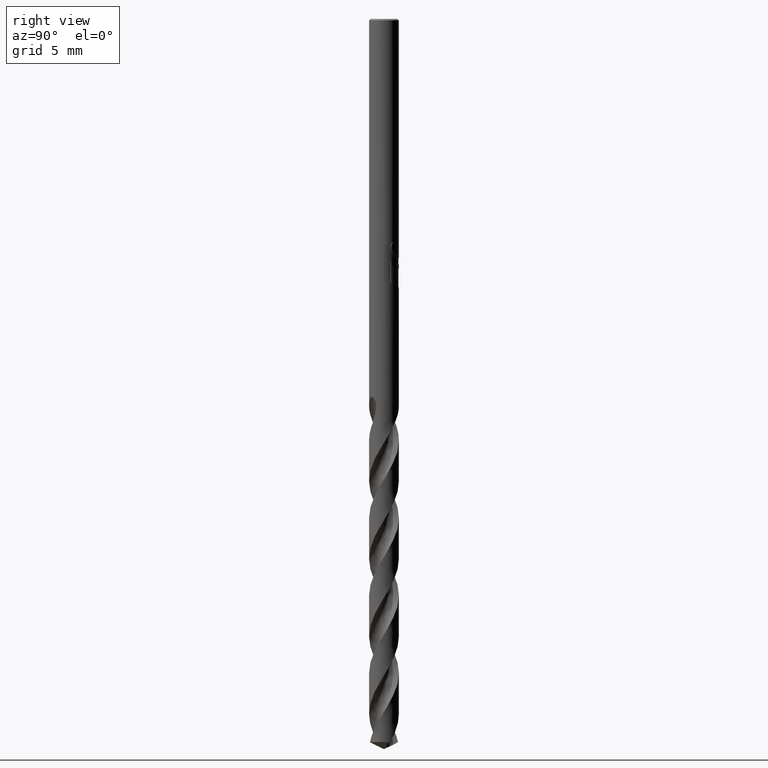
[diagram: clean part render]
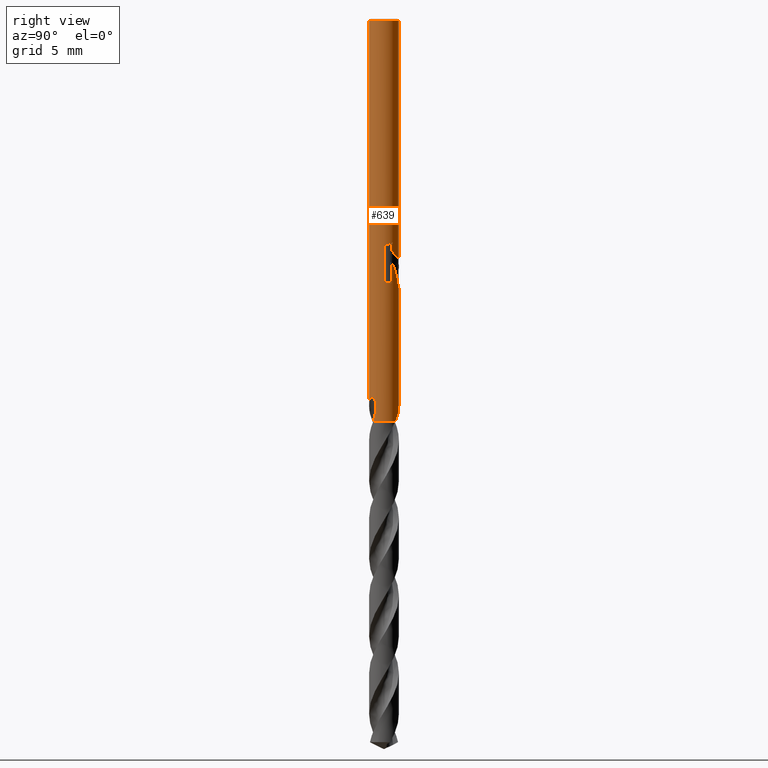
[diagram: same view with one face highlighted and labeled with its STEP entity id]
A machine part, right view. The second image highlights one B-rep face of the part: STEP entity #639.
In plain terms, the highlighted cylindrical surface (edge-blend (fillet) strip) has radius 1 mm, axis along (-0, -0, 1).
Its self-contained STEP definition (entity closure, byte-faithful):
#293=VERTEX_POINT('',#824);
#305=VERTEX_POINT('',#836);
#347=VERTEX_POINT('',#881);
#351=EDGE_CURVE('',#587,#599,#885,.T.);
#353=EDGE_CURVE('',#347,#765,#887,.T.);
#381=EDGE_CURVE('',#293,#757,#918,.T.);
#421=VERTEX_POINT('',#963);
#445=VERTEX_POINT('',#989);
#467=EDGE_CURVE('',#305,#599,#1013,.T.);
#473=EDGE_CURVE('',#581,#421,#1019,.T.);
#483=EDGE_CURVE('',#763,#765,#1030,.T.);
#491=EDGE_CURVE('',#685,#293,#1038,.T.);
#509=EDGE_CURVE('',#519,#741,#1058,.T.);
#519=VERTEX_POINT('',#1069);
#521=EDGE_CURVE('',#587,#421,#1071,.T.);
#537=EDGE_CURVE('',#445,#659,#1089,.T.);
#581=VERTEX_POINT('',#1138);
#587=VERTEX_POINT('',#1145);
#599=VERTEX_POINT('',#1159);
#629=EDGE_CURVE('',#757,#445,#1191,.T.);
#637=EDGE_CURVE('',#519,#685,#1199,.T.);
#639=ADVANCED_FACE('',(#1201),#1202,.T.);
#659=VERTEX_POINT('',#1224);
#667=EDGE_CURVE('',#659,#581,#1233,.T.);
#685=VERTEX_POINT('',#1252);
#737=EDGE_CURVE('',#305,#347,#1309,.T.);
#741=VERTEX_POINT('',#1313);
#757=VERTEX_POINT('',#1331);
#763=VERTEX_POINT('',#1337);
#765=VERTEX_POINT('',#1339);
#767=EDGE_CURVE('',#763,#741,#1341,.T.);
#824=CARTESIAN_POINT('',(0.873560781758957,0.486715071240535,-16.3198931596091));
#836=CARTESIAN_POINT('',(3.64769493907055E-013,-1.0,-25.9420152279177));
#881=CARTESIAN_POINT('',(0.813642163312234,-0.581366003547324,-26.4574197756242));
#885=CIRCLE('',#1884,1.0);
#887=B_SPLINE_CURVE_WITH_KNOTS('',3,(#1887,#1888,#1889,#1890),.UNSPECIFIED.,.F.,.F.,(4,4),(0.0,0.569458635064471),.UNSPECIFIED.);
#918=LINE('',#2255,#2256);
#963=CARTESIAN_POINT('',(5.06214303679778E-017,1.0,-16.0232688117743));
#989=CARTESIAN_POINT('',(1.0,0.0,-17.6655479121829));
#1013=LINE('',#3171,#3172);
#1019=B_SPLINE_CURVE_WITH_KNOTS('',3,(#3179,#3180,#3181,#3182,#3183,#3184,#3185,#3186,#3187,#3188,#3189,#3190,#3191,#3192,#3193,#3194,#3195,#3196,#3197,#3198,#3199,#3200,#3201,#3202,#3203,#3204,#3205,#3206,#3207,#3208,#3209),.UNSPECIFIED.,.F.,.F.,(4,2,2,3,2,2,2,2,2,2,2,2,2,2,4),(-0.607233525241759,-0.303616762620879,-0.151808381310439,0.0,0.15180838131044,0.30361676262088,0.607233525241759,0.912218572818199,1.21720362039464,1.4895999723445,1.76199632429436,2.04336921409699,2.32474210389963,2.60611499370226,2.88748788350489),.UNSPECIFIED.);
#1030=CIRCLE('',#3221,1.0);
#1038=ELLIPSE('',#3263,3.04799457336977,1.0);
#1058=LINE('',#3465,#3466);
#1069=CARTESIAN_POINT('',(1.0146208194845E-016,1.0,-18.0310253601033));
#1071=LINE('',#3500,#3501);
#1089=LINE('',#3721,#3722);
#1138=CARTESIAN_POINT('',(0.799431726384364,0.600756951562039,-15.000000276873));
#1145=CARTESIAN_POINT('',(0.0,1.0,-0.100000000000001));
#1159=CARTESIAN_POINT('',(1.22460635382238E-016,-1.0,-0.100000000000001));
#1191=B_SPLINE_CURVE_WITH_KNOTS('',3,(#6472,#6473,#6474,#6475,#6476,#6477,#6478,#6479,#6480,#6481),.UNSPECIFIED.,.F.,.F.,(4,2,2,2,4),(2.33216506919185,2.72360547369509,2.91932567594671,3.11504587819833,3.31076608044995),.UNSPECIFIED.);
#1199=B_SPLINE_CURVE_WITH_KNOTS('',3,(#6493,#6494,#6495,#6496,#6497,#6498,#6499,#6500,#6501,#6502,#6503,#6504,#6505,#6506,#6507,#6508,#6509),.UNSPECIFIED.,.F.,.F.,(4,3,2,2,2,2,2,4),(-0.19504411259458,0.0,0.19504411259458,0.39008822518916,0.780176450378319,1.166317916099,1.55245938181969,1.94231222037545),.UNSPECIFIED.);
#1201=FACE_OUTER_BOUND('',#6511,.T.);
#1202=CYLINDRICAL_SURFACE('',#6512,1.0);
#1224=CARTESIAN_POINT('',(1.0,0.0,-15.1396662235831));
#1233=B_SPLINE_CURVE_WITH_KNOTS('',3,(#6926,#6927,#6928,#6929,#6930,#6931,#6932,#6933,#6934,#6935),.UNSPECIFIED.,.F.,.F.,(4,2,2,2,4),(2.91932566866396,3.11504587074916,3.31076607283436,3.50648627491957,3.89792667908997),.UNSPECIFIED.);
#1252=CARTESIAN_POINT('',(0.29010312703583,0.956995389583478,-17.9998328990228));
#1309=B_SPLINE_CURVE_WITH_KNOTS('',3,(#7954,#7955,#7956,#7957,#7958,#7959,#7960,#7961,#7962,#7963,#7964,#7965,#7966,#7967,#7968,#7969,#7970,#7971,#7972,#7973,#7974,#7975,#7976,#7977,#7978,#7979,#7980,#7981),.UNSPECIFIED.,.F.,.F.,(4,2,2,2,2,2,2,2,2,2,2,2,2,4),(0.0,0.486315119149955,0.753502227558083,0.996053073942909,1.27815984182243,1.61675895999867,1.90796937706702,2.04078048043294,2.13789516683883,2.22982424761421,2.34648706572778,2.51720800066213,2.75988064639899,3.03538732581387),.UNSPECIFIED.);
#1313=CARTESIAN_POINT('',(-3.65657672326755E-013,1.0,-25.9420152279177));
#1331=CARTESIAN_POINT('',(0.873560781758956,0.486715071240538,-17.7587351791531));
#1337=CARTESIAN_POINT('',(0.634841489332145,0.772642403329344,-27.0));
#1339=CARTESIAN_POINT('',(0.696395247789617,-0.717658455573428,-27.0));
#1341=B_SPLINE_CURVE_WITH_KNOTS('',3,(#8038,#8039,#8040,#8041,#8042,#8043,#8044,#8045,#8046,#8047,#8048,#8049,#8050,#8051,#8052,#8053,#8054,#8055,#8056,#8057,#8058,#8059,#8060,#8061,#8062,#8063,#8064,#8065),.UNSPECIFIED.,.F.,.F.,(4,2,2,2,2,2,2,2,2,2,2,2,2,4),(0.0,0.486315119149953,0.753502227558069,0.996053073942924,1.27815984182254,1.61675895999886,1.90796937706729,2.04078048043324,2.13789516683916,2.22982424761455,2.34648706572807,2.51720800066145,2.75988064639575,3.03538732580798),.UNSPECIFIED.);
#1884=AXIS2_PLACEMENT_3D('',#8310,#8311,#8312);
#1887=CARTESIAN_POINT('',(0.813642163364854,-0.581366003473684,-26.4574197756531));
#1888=CARTESIAN_POINT('',(0.78169812061079,-0.626072814497616,-26.6391127552995));
#1889=CARTESIAN_POINT('',(0.743260976586595,-0.67218129221675,-26.8218533031689));
#1890=CARTESIAN_POINT('',(0.696395247789617,-0.717658455573426,-27.0));
#2255=CARTESIAN_POINT('',(0.873560781758957,0.486715071240535,-17.0393141693811));
#2256=VECTOR('',#8357,1.0);
#3171=CARTESIAN_POINT('',(1.22460635382238E-016,-1.0,-23.5));
#3172=VECTOR('',#8471,1.0);
#3179=CARTESIAN_POINT('',(0.673478773298645,0.739206562414155,-14.8221013126891));
#3180=CARTESIAN_POINT('',(0.732898512196537,0.685070229084017,-14.8835921493418));
#3181=CARTESIAN_POINT('',(0.784035818772585,0.62377271486409,-14.9592044724041));
#3182=CARTESIAN_POINT('',(0.837072103961167,0.547961151775005,-15.0855800820537));
#3183=CARTESIAN_POINT('',(0.850964192131077,0.525559955949891,-15.1298681551343));
#3184=CARTESIAN_POINT('',(0.870113898944855,0.493209009232316,-15.2225766796322));
#3185=CARTESIAN_POINT('',(0.875400981188567,0.483397478410981,-15.2710392188166));
#3186=CARTESIAN_POINT('',(0.875400981188567,0.483397478410981,-15.3216420125868));
#3187=CARTESIAN_POINT('',(0.875400981188567,0.483397478410981,-15.3722448063569));
#3188=CARTESIAN_POINT('',(0.870113898944855,0.493209009232316,-15.4207073455414));
#3189=CARTESIAN_POINT('',(0.850964192131077,0.52555995594989,-15.5134158700393));
#3190=CARTESIAN_POINT('',(0.837072103961168,0.547961151775003,-15.5577039431199));
#3191=CARTESIAN_POINT('',(0.784035818772587,0.623772714864088,-15.6840795527694));
#3192=CARTESIAN_POINT('',(0.732898512196537,0.685070229084017,-15.7596918758318));
#3193=CARTESIAN_POINT('',(0.613791252299082,0.79358686755206,-15.8829506648866));
#3194=CARTESIAN_POINT('',(0.536550060182283,0.849736898708803,-15.9395969520149));
#3195=CARTESIAN_POINT('',(0.358230432856478,0.93894078865622,-16.0184933615078));
#3196=CARTESIAN_POINT('',(0.256934968912869,0.97176104029934,-16.0405166027747));
#3197=CARTESIAN_POINT('',(0.0668468131160956,1.00188618253226,-16.0405166027747));
#3198=CARTESIAN_POINT('',(-0.0291729907235004,1.00347676559166,-16.0225778316884));
#3199=CARTESIAN_POINT('',(-0.204783002825692,0.982792247679803,-15.9503317442107));
#3200=CARTESIAN_POINT('',(-0.284466038399353,0.961010291643699,-15.8961097710298));
#3201=CARTESIAN_POINT('',(-0.411816290198985,0.913875241964301,-15.7710754747411));
#3202=CARTESIAN_POINT('',(-0.467748305765433,0.88493728473904,-15.6909252580766));
#3203=CARTESIAN_POINT('',(-0.543025225108172,0.840848585319699,-15.5132567961665));
#3204=CARTESIAN_POINT('',(-0.562348199187247,0.826900539890295,-15.4154329758543));
#3205=CARTESIAN_POINT('',(-0.562348199187247,0.826900539890295,-15.2278510493192));
#3206=CARTESIAN_POINT('',(-0.543025225108173,0.840848585319698,-15.1300272290071));
#3207=CARTESIAN_POINT('',(-0.467748305765435,0.88493728473904,-14.952358767097));
#3208=CARTESIAN_POINT('',(-0.411816290198985,0.913875241964301,-14.8722085504325));
#3209=CARTESIAN_POINT('',(-0.34710899758635,0.937824793761926,-14.808678006266));
#3221=AXIS2_PLACEMENT_3D('',#8480,#8481,#8482);
#3263=AXIS2_PLACEMENT_3D('',#8484,#8485,#8486);
#3465=CARTESIAN_POINT('',(-1.22460635382238E-016,1.0,-23.5));
#3466=VECTOR('',#8510,1.0);
#3500=CARTESIAN_POINT('',(-1.22460635382238E-016,1.0,-23.5));
#3501=VECTOR('',#8519,1.0);
#3721=CARTESIAN_POINT('',(1.0,0.0,-16.4026070677437));
#3722=VECTOR('',#8540,1.0);
#6472=CARTESIAN_POINT('',(0.707941104621816,0.70627147215985,-17.8553307543223));
#6473=CARTESIAN_POINT('',(0.794704030664111,0.619303437737102,-17.8113555199326));
#6474=CARTESIAN_POINT('',(0.870512243238349,0.509653292290257,-17.7622271716788));
#6475=CARTESIAN_POINT('',(0.947501743465762,0.326534417694543,-17.7069216720578));
#6476=CARTESIAN_POINT('',(0.967267009322787,0.262361726538396,-17.6916185196515));
#6477=CARTESIAN_POINT('',(0.993523469836628,0.131720367495061,-17.6709042323927));
#6478=CARTESIAN_POINT('',(1.0,0.0652400674172064,-17.6655479121829));
#6479=CARTESIAN_POINT('',(1.0,-0.0652400674172064,-17.6655479121829));
#6480=CARTESIAN_POINT('',(0.993523469836628,-0.131720367495061,-17.6709042323927));
#6481=CARTESIAN_POINT('',(0.980395239579707,-0.197041047016728,-17.6812613760221));
#6493=CARTESIAN_POINT('',(-0.980444819587482,-0.196794196418672,-17.7240035705323));
#6494=CARTESIAN_POINT('',(-0.993565563062151,-0.131425574063137,-17.7145499063757));
#6495=CARTESIAN_POINT('',(-1.0,-0.0650147041981933,-17.7096916079355));
#6496=CARTESIAN_POINT('',(-1.0,0.0,-17.7096916079355));
#6497=CARTESIAN_POINT('',(-1.0,0.0650147041981933,-17.7096916079355));
#6498=CARTESIAN_POINT('',(-0.993565563062151,0.131425574063137,-17.7145499063757));
#6499=CARTESIAN_POINT('',(-0.967324076112812,0.262162818774206,-17.733457234689));
#6500=CARTESIAN_POINT('',(-0.947530815459635,0.326498668616294,-17.747459854512));
#6501=CARTESIAN_POINT('',(-0.870227269632897,0.510264153789291,-17.7981758412044));
#6502=CARTESIAN_POINT('',(-0.793890669672503,0.620514468200863,-17.8433674785199));
#6503=CARTESIAN_POINT('',(-0.619652273446457,0.794369949064209,-17.9231378507274));
#6504=CARTESIAN_POINT('',(-0.509393531502069,0.870757232476645,-17.9636894408171));
#6505=CARTESIAN_POINT('',(-0.264011144697287,0.973651943067932,-18.0190349224756));
#6506=CARTESIAN_POINT('',(-0.128694303528194,1.0,-18.0332668304406));
#6507=CARTESIAN_POINT('',(0.129931240206963,1.0,-18.0287623460241));
#6508=CARTESIAN_POINT('',(0.265840915073126,0.973193360312368,-18.0095124995587));
#6509=CARTESIAN_POINT('',(0.388686445156455,0.921370092499012,-17.9769707233872));
#6511=EDGE_LOOP('',(#8671,#8672,#8673,#8674,#8675,#8676,#8677,#8678,#8679,#8680,#8681,#8682,#8683,#8684,#8685));
#6512=AXIS2_PLACEMENT_3D('',#8686,#8687,#8688);
#6926=CARTESIAN_POINT('',(0.980395239623956,-0.197041046796564,-15.1239527595616));
#6927=CARTESIAN_POINT('',(0.99352346984752,-0.131720367364932,-15.1343099033138));
#6928=CARTESIAN_POINT('',(1.0,-0.0652400673617343,-15.1396662235831));
#6929=CARTESIAN_POINT('',(1.0,0.065240067361734,-15.1396662235831));
#6930=CARTESIAN_POINT('',(0.99352346984752,0.131720367364932,-15.1343099033138));
#6931=CARTESIAN_POINT('',(0.967267009400393,0.262361726228194,-15.1135956158094));
#6932=CARTESIAN_POINT('',(0.947501743599132,0.326534417278908,-15.0982924632162));
#6933=CARTESIAN_POINT('',(0.870512243641438,0.509653291528352,-15.0429869628057));
#6934=CARTESIAN_POINT('',(0.794704031385602,0.619303436703265,-14.9938586136994));
#6935=CARTESIAN_POINT('',(0.707941105883175,0.70627147089551,-14.9498833781179));
#7954=CARTESIAN_POINT('',(-0.634841489332145,-0.772642403329344,-27.0));
#7955=CARTESIAN_POINT('',(-0.569063042017873,-0.826689252530226,-26.8620500893008));
#7956=CARTESIAN_POINT('',(-0.49362829051234,-0.874633404089495,-26.7332556092569));
#7957=CARTESIAN_POINT('',(-0.362092801182732,-0.933541954259275,-26.5178770775166));
#7958=CARTESIAN_POINT('',(-0.314580386880739,-0.950550046193102,-26.4417865859912));
#7959=CARTESIAN_POINT('',(-0.222521761345376,-0.975986377041126,-26.2943596287175));
#7960=CARTESIAN_POINT('',(-0.178375337692277,-0.984973036864506,-26.2236925386448));
#7961=CARTESIAN_POINT('',(-0.0827625185949405,-0.997918774791236,-26.0713148020854));
#7962=CARTESIAN_POINT('',(-0.0304842963187713,-1.00092673578298,-25.9883933091746));
#7963=CARTESIAN_POINT('',(0.0855723170221471,-0.998342364501833,-25.8111323335177));
#7964=CARTESIAN_POINT('',(0.154409605646612,-0.990700443091022,-25.7102704916496));
#7965=CARTESIAN_POINT('',(0.286703096553658,-0.960074782067612,-25.5447567655431));
#7966=CARTESIAN_POINT('',(0.359504089173723,-0.936937353257582,-25.4644634701456));
#7967=CARTESIAN_POINT('',(0.469917831565921,-0.883545652625182,-25.3889707559942));
#7968=CARTESIAN_POINT('',(0.50662148531637,-0.863304491822586,-25.3702412765686));
#7969=CARTESIAN_POINT('',(0.57094354101037,-0.821627317932716,-25.3558724674693));
#7970=CARTESIAN_POINT('',(0.597329698140652,-0.802644509769649,-25.3556222950202));
#7971=CARTESIAN_POINT('',(0.646478662183727,-0.763543132494086,-25.3682722977457));
#7972=CARTESIAN_POINT('',(0.667975306297854,-0.744656659894225,-25.3801191841257));
#7973=CARTESIAN_POINT('',(0.711726031081877,-0.703264339849075,-25.4171744441095));
#7974=CARTESIAN_POINT('',(0.731967618640897,-0.681812491565128,-25.444531566887));
#7975=CARTESIAN_POINT('',(0.773429215520865,-0.634971026278083,-25.519440448554));
#7976=CARTESIAN_POINT('',(0.793244481378834,-0.609464356749814,-25.5750020342022));
#7977=CARTESIAN_POINT('',(0.830491892501607,-0.55826918115183,-25.7304348067894));
#7978=CARTESIAN_POINT('',(0.843947813018679,-0.53647839181785,-25.8411252191962));
#7979=CARTESIAN_POINT('',(0.852491490643159,-0.522811338154955,-26.1055324757325));
#7980=CARTESIAN_POINT('',(0.846359061382859,-0.535577554342139,-26.2713376298635));
#7981=CARTESIAN_POINT('',(0.813642163312235,-0.581366003547325,-26.4574197756242));
#8038=CARTESIAN_POINT('',(0.634841489332145,0.772642403329344,-27.0));
#8039=CARTESIAN_POINT('',(0.569063042017873,0.826689252530226,-26.8620500893008));
#8040=CARTESIAN_POINT('',(0.493628290512342,0.874633404089495,-26.7332556092569));
#8041=CARTESIAN_POINT('',(0.362092801182733,0.933541954259275,-26.5178770775166));
#8042=CARTESIAN_POINT('',(0.314580386880741,0.950550046193102,-26.4417865859912));
#8043=CARTESIAN_POINT('',(0.222521761345367,0.975986377041129,-26.2943596287174));
#8044=CARTESIAN_POINT('',(0.178375337692258,0.984973036864508,-26.2236925386447));
#8045=CARTESIAN_POINT('',(0.0827625185949509,0.997918774791234,-26.0713148020854));
#8046=CARTESIAN_POINT('',(0.0304842963187761,1.00092673578298,-25.9883933091746));
#8047=CARTESIAN_POINT('',(-0.0855723170221472,0.998342364501833,-25.8111323335177));
#8048=CARTESIAN_POINT('',(-0.154409605646612,0.990700443091022,-25.7102704916496));
#8049=CARTESIAN_POINT('',(-0.286703096553659,0.960074782067612,-25.5447567655431));
#8050=CARTESIAN_POINT('',(-0.359504089173723,0.936937353257582,-25.4644634701456));
#8051=CARTESIAN_POINT('',(-0.469917831565922,0.883545652625182,-25.3889707559942));
#8052=CARTESIAN_POINT('',(-0.50662148531637,0.863304491822586,-25.3702412765686));
#8053=CARTESIAN_POINT('',(-0.570943541010371,0.821627317932715,-25.3558724674693));
#8054=CARTESIAN_POINT('',(-0.597329698140652,0.802644509769648,-25.3556222950202));
#8055=CARTESIAN_POINT('',(-0.64647866218372,0.763543132494091,-25.3682722977457));
#8056=CARTESIAN_POINT('',(-0.667975306297842,0.744656659894236,-25.3801191841257));
#8057=CARTESIAN_POINT('',(-0.711726031081881,0.70326433984907,-25.4171744441095));
#8058=CARTESIAN_POINT('',(-0.731967618640905,0.68181249156512,-25.444531566887));
#8059=CARTESIAN_POINT('',(-0.773429215520723,0.634971026278244,-25.5194404485537));
#8060=CARTESIAN_POINT('',(-0.793244481378741,0.609464356749943,-25.5750020342018));
#8061=CARTESIAN_POINT('',(-0.830491892501633,0.558269181151796,-25.7304348067895));
#8062=CARTESIAN_POINT('',(-0.843947813018682,0.536478391817844,-25.8411252191964));
#8063=CARTESIAN_POINT('',(-0.852491490643158,0.522811338154955,-26.1055324757325));
#8064=CARTESIAN_POINT('',(-0.846359061382859,0.535577554342139,-26.2713376298635));
#8065=CARTESIAN_POINT('',(-0.813642163312235,0.581366003547325,-26.4574197756242));
#8310=CARTESIAN_POINT('',(0.0,0.0,-0.100000000000001));
#8311=DIRECTION('',(0.0,0.0,-1.0));
#8312=DIRECTION('',(0.0,1.0,0.0));
#8357=DIRECTION('',(0.0,0.0,-1.0));
#8471=DIRECTION('',(-0.0,-0.0,1.0));
#8480=CARTESIAN_POINT('',(0.0,0.0,-27.0));
#8481=DIRECTION('',(0.0,0.0,-1.0));
#8482=DIRECTION('',(0.0,1.0,0.0));
#8484=CARTESIAN_POINT('',(0.0,0.0,-18.8351219173269));
#8485=DIRECTION('',(0.944648353914092,0.0,-0.328084573619969));
#8486=DIRECTION('',(0.328084573619968,-0.0,0.944648353914092));
#8510=DIRECTION('',(0.0,0.0,-1.0));
#8519=DIRECTION('',(0.0,0.0,-1.0));
#8540=DIRECTION('',(-0.0,-0.0,1.0));
#8671=ORIENTED_EDGE('',*,*,#521,.F.);
#8672=ORIENTED_EDGE('',*,*,#351,.T.);
#8673=ORIENTED_EDGE('',*,*,#467,.F.);
#8674=ORIENTED_EDGE('',*,*,#737,.T.);
#8675=ORIENTED_EDGE('',*,*,#353,.T.);
#8676=ORIENTED_EDGE('',*,*,#483,.F.);
#8677=ORIENTED_EDGE('',*,*,#767,.T.);
#8678=ORIENTED_EDGE('',*,*,#509,.F.);
#8679=ORIENTED_EDGE('',*,*,#637,.T.);
#8680=ORIENTED_EDGE('',*,*,#491,.T.);
#8681=ORIENTED_EDGE('',*,*,#381,.T.);
#8682=ORIENTED_EDGE('',*,*,#629,.T.);
#8683=ORIENTED_EDGE('',*,*,#537,.T.);
#8684=ORIENTED_EDGE('',*,*,#667,.T.);
#8685=ORIENTED_EDGE('',*,*,#473,.T.);
#8686=CARTESIAN_POINT('',(0.0,0.0,-23.5));
#8687=DIRECTION('',(-0.0,-0.0,1.0));
#8688=DIRECTION('',(0.0,1.0,0.0));